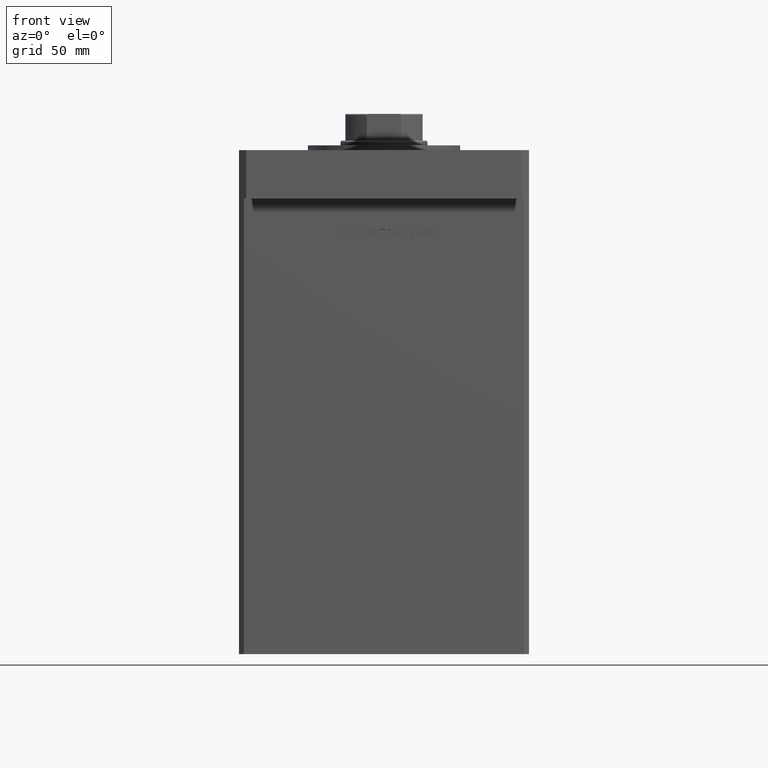
[diagram: clean part render]
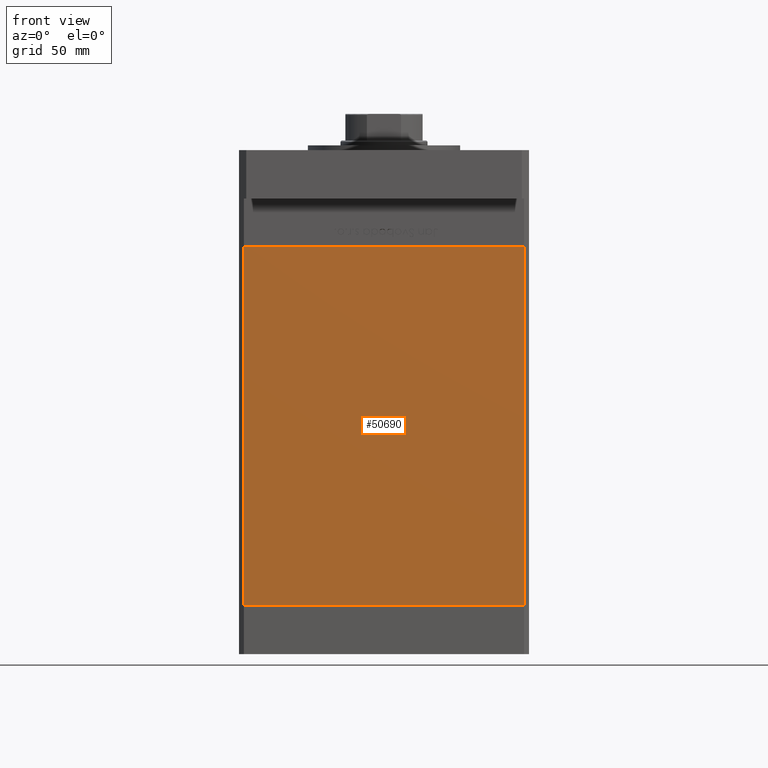
[diagram: same view with one face highlighted and labeled with its STEP entity id]
A machine part, front view. The second image highlights one B-rep face of the part: STEP entity #50690.
In plain terms, the highlighted planar face has unit normal (0, 1, 0).
Its self-contained STEP definition (entity closure, byte-faithful):
#209 = LINE ( 'NONE', #45689, #32454 ) ;
#1309 = DIRECTION ( 'NONE',  ( 0.000000000000000000, -0.000000000000000000, 1.000000000000000000 ) ) ;
#3337 = LINE ( 'NONE', #14793, #34354 ) ;
#3528 = CARTESIAN_POINT ( 'NONE',  ( -57.99999999999997868, -51.00000000000000711, 0.000000000000000000 ) ) ;
#4561 = DIRECTION ( 'NONE',  ( 1.000000000000000000, 0.000000000000000000, 0.000000000000000000 ) ) ;
#8467 = LINE ( 'NONE', #17164, #44498 ) ;
#9211 = DIRECTION ( 'NONE',  ( 0.000000000000000000, 1.000000000000000000, 0.000000000000000000 ) ) ;
#9742 = PLANE ( 'NONE',  #18564 ) ;
#11303 = VERTEX_POINT ( 'NONE', #53000 ) ;
#14098 = CARTESIAN_POINT ( 'NONE',  ( -57.99999999999997868, -51.00000000000000711, 148.5000000000000000 ) ) ;
#14793 = CARTESIAN_POINT ( 'NONE',  ( -57.99999999999997868, -51.00000000000000711, 148.5000000000000000 ) ) ;
#15782 = DIRECTION ( 'NONE',  ( 1.000000000000000000, 0.000000000000000000, 0.000000000000000000 ) ) ;
#17164 = CARTESIAN_POINT ( 'NONE',  ( 57.99999999999997868, -51.00000000000000711, 148.5000000000000000 ) ) ;
#18564 = AXIS2_PLACEMENT_3D ( 'NONE', #14098, #9211, #1309 ) ;
#20485 = CARTESIAN_POINT ( 'NONE',  ( 57.99999999999997868, -51.00000000000000711, 0.000000000000000000 ) ) ;
#21502 = ORIENTED_EDGE ( 'NONE', *, *, #35847, .T. ) ;
#22799 = VERTEX_POINT ( 'NONE', #47703 ) ;
#24615 = VECTOR ( 'NONE', #15782, 1000.000000000000000 ) ;
#29863 = ORIENTED_EDGE ( 'NONE', *, *, #47311, .T. ) ;
#30678 = EDGE_LOOP ( 'NONE', ( #21502, #36617, #51642, #29863 ) ) ;
#32200 = VERTEX_POINT ( 'NONE', #36195 ) ;
#32454 = VECTOR ( 'NONE', #4561, 1000.000000000000000 ) ;
#34177 = EDGE_CURVE ( 'NONE', #22799, #42315, #8467, .T. ) ;
#34354 = VECTOR ( 'NONE', #40629, 1000.000000000000000 ) ;
#35847 = EDGE_CURVE ( 'NONE', #11303, #42315, #36451, .T. ) ;
#36195 = CARTESIAN_POINT ( 'NONE',  ( -57.99999999999997868, -51.00000000000000711, 148.5000000000000000 ) ) ;
#36451 = LINE ( 'NONE', #3528, #24615 ) ;
#36617 = ORIENTED_EDGE ( 'NONE', *, *, #34177, .F. ) ;
#37939 = EDGE_CURVE ( 'NONE', #32200, #22799, #209, .T. ) ;
#38592 = FACE_OUTER_BOUND ( 'NONE', #30678, .T. ) ;
#40629 = DIRECTION ( 'NONE',  ( -0.000000000000000000, -0.000000000000000000, -1.000000000000000000 ) ) ;
#42315 = VERTEX_POINT ( 'NONE', #20485 ) ;
#43480 = DIRECTION ( 'NONE',  ( -0.000000000000000000, -0.000000000000000000, -1.000000000000000000 ) ) ;
#44498 = VECTOR ( 'NONE', #43480, 1000.000000000000000 ) ;
#45689 = CARTESIAN_POINT ( 'NONE',  ( -57.99999999999997868, -51.00000000000000711, 148.5000000000000000 ) ) ;
#47311 = EDGE_CURVE ( 'NONE', #32200, #11303, #3337, .T. ) ;
#47703 = CARTESIAN_POINT ( 'NONE',  ( 57.99999999999997868, -51.00000000000000711, 148.5000000000000000 ) ) ;
#50690 = ADVANCED_FACE ( 'NONE', ( #38592 ), #9742, .F. ) ;
#51642 = ORIENTED_EDGE ( 'NONE', *, *, #37939, .F. ) ;
#53000 = CARTESIAN_POINT ( 'NONE',  ( -57.99999999999997868, -51.00000000000000711, 0.000000000000000000 ) ) ;